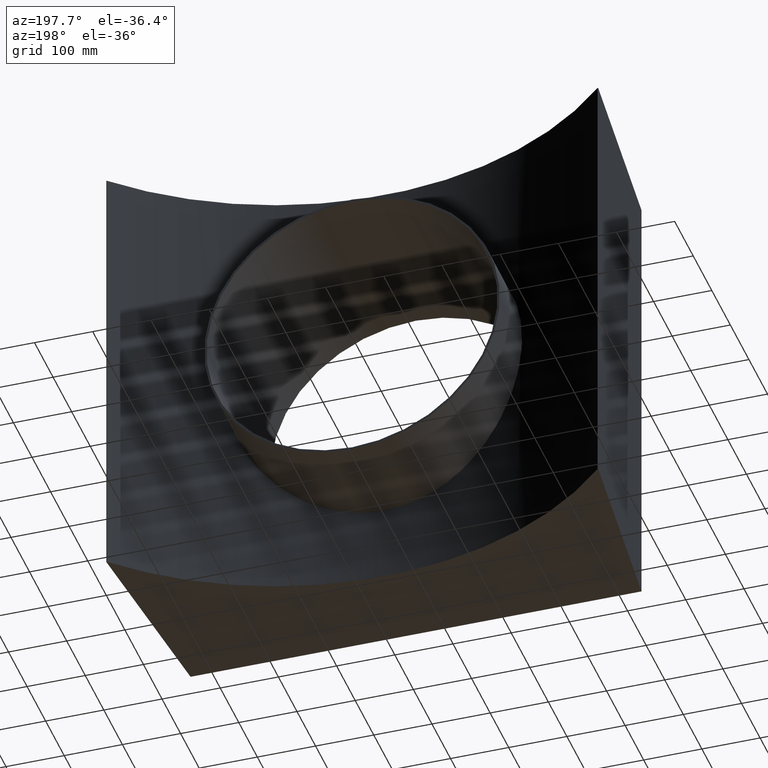
[diagram: clean part render]
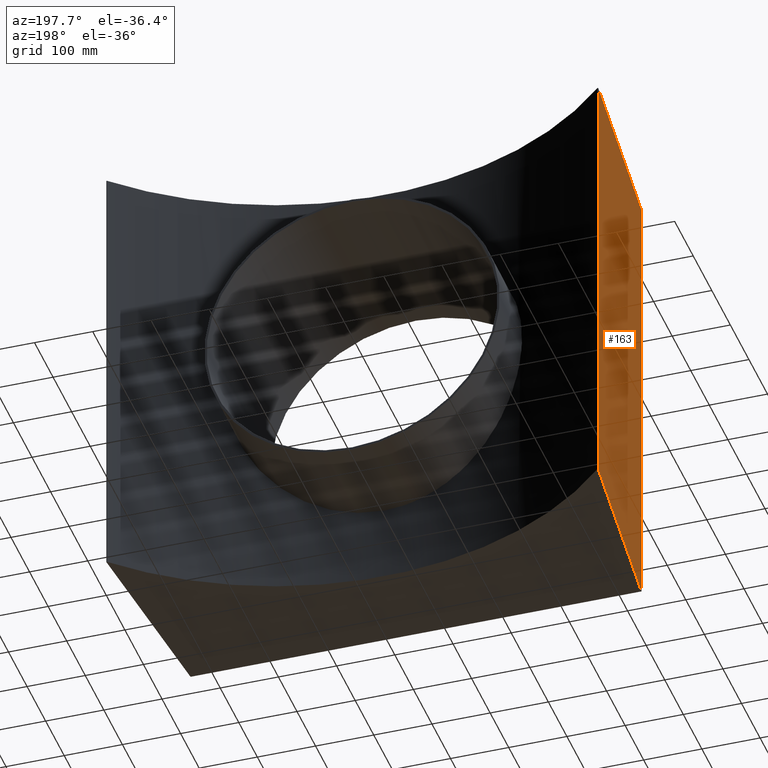
[diagram: same view with one face highlighted and labeled with its STEP entity id]
A machine part, auxiliary view. The second image highlights one B-rep face of the part: STEP entity #163.
In plain terms, the highlighted planar face has unit normal (-0.9948, -0.1014, 0).
Its self-contained STEP definition (entity closure, byte-faithful):
#43 = FACE_OUTER_BOUND ( 'NONE', #436, .T. ) ;
#89 = DIRECTION ( 'NONE',  ( -0.1014492753623182919, 0.9948407131437978501, 0.0000000000000000000 ) ) ;
#97 = DIRECTION ( 'NONE',  ( -0.0000000000000000000, -0.0000000000000000000, -1.000000000000000000 ) ) ;
#109 = CARTESIAN_POINT ( 'NONE',  ( -387.5000000000000000, -2.775557561562891351E-14, 387.5000000000000000 ) ) ;
#117 = LINE ( 'NONE', #109, #166 ) ;
#124 = ORIENTED_EDGE ( 'NONE', *, *, #150, .T. ) ;
#140 = ORIENTED_EDGE ( 'NONE', *, *, #884, .T. ) ;
#150 = EDGE_CURVE ( 'NONE', #470, #739, #117, .T. ) ;
#163 = ADVANCED_FACE ( 'NONE', ( #43 ), #395, .T. ) ;
#166 = VECTOR ( 'NONE', #259, 1000.000000000000114 ) ;
#211 = CARTESIAN_POINT ( 'NONE',  ( -422.4999999999998295, 343.2200460346102204, 387.5000000000000000 ) ) ;
#255 = CARTESIAN_POINT ( 'NONE',  ( -387.5000000000000000, -2.775557561562891351E-14, -387.5000000000000000 ) ) ;
#259 = DIRECTION ( 'NONE',  ( -0.1014492753623182919, 0.9948407131437978501, 0.0000000000000000000 ) ) ;
#331 = VECTOR ( 'NONE', #668, 1000.000000000000000 ) ;
#382 = CARTESIAN_POINT ( 'NONE',  ( -387.5000000000000000, -2.775557561562891351E-14, 387.5000000000000000 ) ) ;
#395 = PLANE ( 'NONE',  #574 ) ;
#398 = CARTESIAN_POINT ( 'NONE',  ( -422.4999999999998295, 343.2200460346102204, 387.5000000000000000 ) ) ;
#433 = VECTOR ( 'NONE', #97, 1000.000000000000000 ) ;
#436 = EDGE_LOOP ( 'NONE', ( #817, #747, #124, #140 ) ) ;
#437 = LINE ( 'NONE', #211, #331 ) ;
#459 = CARTESIAN_POINT ( 'NONE',  ( -387.5000000000000000, -2.775557561562891351E-14, 387.5000000000000000 ) ) ;
#470 = VERTEX_POINT ( 'NONE', #459 ) ;
#483 = DIRECTION ( 'NONE',  ( 0.1014492753623182919, -0.9948407131437978501, 0.0000000000000000000 ) ) ;
#535 = EDGE_CURVE ( 'NONE', #669, #782, #556, .T. ) ;
#540 = CARTESIAN_POINT ( 'NONE',  ( -387.5000000000000000, -2.775557561562891351E-14, -387.5000000000000000 ) ) ;
#556 = LINE ( 'NONE', #255, #648 ) ;
#574 = AXIS2_PLACEMENT_3D ( 'NONE', #645, #706, #483 ) ;
#645 = CARTESIAN_POINT ( 'NONE',  ( -387.5000000000000000, -2.775557561562891351E-14, 387.5000000000000000 ) ) ;
#648 = VECTOR ( 'NONE', #89, 1000.000000000000114 ) ;
#655 = EDGE_CURVE ( 'NONE', #470, #669, #772, .T. ) ;
#668 = DIRECTION ( 'NONE',  ( -0.0000000000000000000, -0.0000000000000000000, -1.000000000000000000 ) ) ;
#669 = VERTEX_POINT ( 'NONE', #540 ) ;
#706 = DIRECTION ( 'NONE',  ( -0.9948407131437979611, -0.1014492753623183058, 0.0000000000000000000 ) ) ;
#739 = VERTEX_POINT ( 'NONE', #398 ) ;
#747 = ORIENTED_EDGE ( 'NONE', *, *, #655, .F. ) ;
#772 = LINE ( 'NONE', #382, #433 ) ;
#782 = VERTEX_POINT ( 'NONE', #968 ) ;
#817 = ORIENTED_EDGE ( 'NONE', *, *, #535, .F. ) ;
#884 = EDGE_CURVE ( 'NONE', #739, #782, #437, .T. ) ;
#968 = CARTESIAN_POINT ( 'NONE',  ( -422.4999999999998295, 343.2200460346102204, -387.5000000000000000 ) ) ;